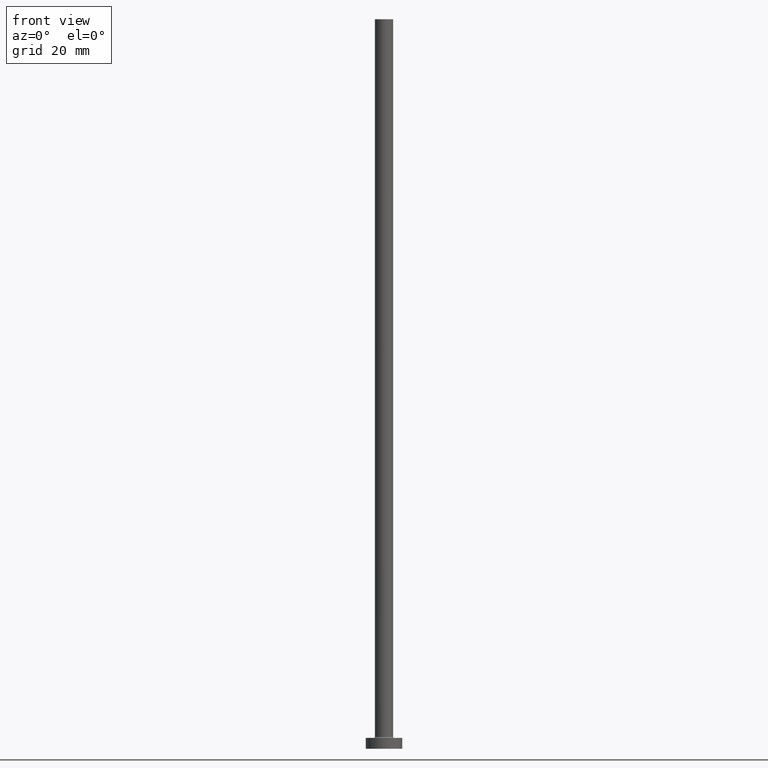
[diagram: clean part render]
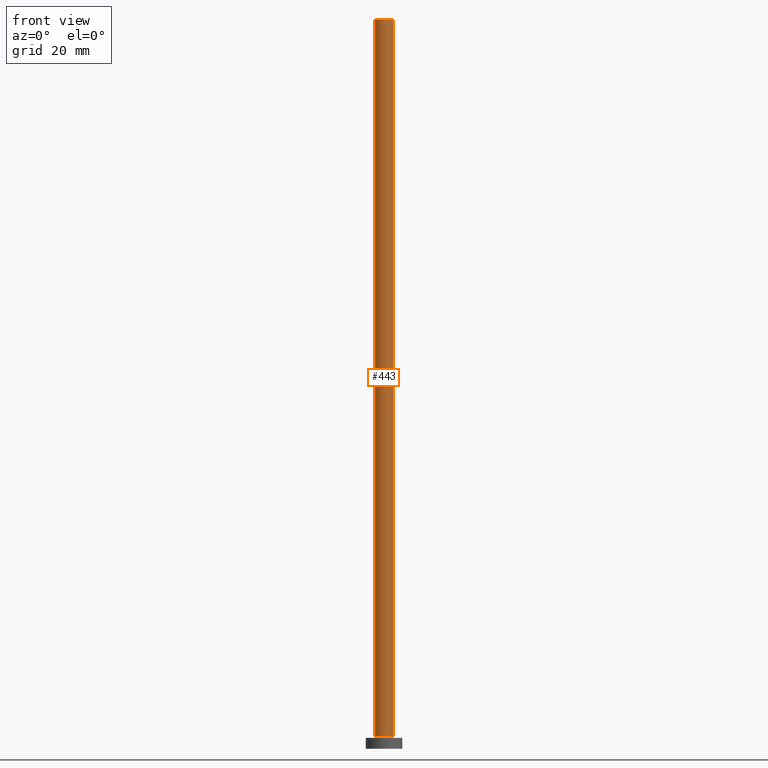
[diagram: same view with one face highlighted and labeled with its STEP entity id]
A machine part, front view. The second image highlights one B-rep face of the part: STEP entity #443.
In plain terms, the highlighted cylindrical surface (edge-blend (fillet) strip) has radius 2.5 mm, axis along (-0, -0, -1).
Its self-contained STEP definition (entity closure, byte-faithful):
#1 = AXIS2_PLACEMENT_3D ( 'NONE', #430, #114, #4 ) ;
#4 = DIRECTION ( 'NONE',  ( -1.000000000000000000, 0.000000000000000000, 0.000000000000000000 ) ) ;
#11 = FACE_OUTER_BOUND ( 'NONE', #173, .T. ) ;
#24 = EDGE_CURVE ( 'NONE', #244, #284, #223, .T. ) ;
#32 = VECTOR ( 'NONE', #241, 1000.000000000000000 ) ;
#33 = CARTESIAN_POINT ( 'NONE',  ( -2.500000000000000000, 0.000000000000000000, 3.299999999999997158 ) ) ;
#48 = VERTEX_POINT ( 'NONE', #81 ) ;
#52 = ORIENTED_EDGE ( 'NONE', *, *, #24, .F. ) ;
#63 = LINE ( 'NONE', #193, #32 ) ;
#81 = CARTESIAN_POINT ( 'NONE',  ( 2.500000000000000000, 3.061616997868383141E-16, 3.299999999999997158 ) ) ;
#88 = CARTESIAN_POINT ( 'NONE',  ( -2.500000000000000000, 0.000000000000000000, 200.0000000000000000 ) ) ;
#90 = VERTEX_POINT ( 'NONE', #33 ) ;
#96 = EDGE_CURVE ( 'NONE', #244, #90, #397, .T. ) ;
#101 = DIRECTION ( 'NONE',  ( 1.000000000000000000, 0.000000000000000000, 0.000000000000000000 ) ) ;
#114 = DIRECTION ( 'NONE',  ( -0.000000000000000000, -0.000000000000000000, -1.000000000000000000 ) ) ;
#145 = AXIS2_PLACEMENT_3D ( 'NONE', #455, #378, #101 ) ;
#149 = DIRECTION ( 'NONE',  ( 1.000000000000000000, 0.000000000000000000, 0.000000000000000000 ) ) ;
#151 = ORIENTED_EDGE ( 'NONE', *, *, #96, .T. ) ;
#173 = EDGE_LOOP ( 'NONE', ( #302, #52, #151, #349 ) ) ;
#193 = CARTESIAN_POINT ( 'NONE',  ( 2.500000000000000000, 3.061616997868383141E-16, 200.0000000000000000 ) ) ;
#198 = CARTESIAN_POINT ( 'NONE',  ( 2.500000000000000000, 3.061616997868383141E-16, 200.0000000000000000 ) ) ;
#211 = CARTESIAN_POINT ( 'NONE',  ( -2.500000000000000000, 0.000000000000000000, 200.0000000000000000 ) ) ;
#219 = EDGE_CURVE ( 'NONE', #90, #48, #293, .T. ) ;
#223 = CIRCLE ( 'NONE', #460, 2.500000000000000000 ) ;
#240 = VECTOR ( 'NONE', #361, 1000.000000000000000 ) ;
#241 = DIRECTION ( 'NONE',  ( -0.000000000000000000, -0.000000000000000000, -1.000000000000000000 ) ) ;
#244 = VERTEX_POINT ( 'NONE', #211 ) ;
#245 = EDGE_CURVE ( 'NONE', #284, #48, #63, .T. ) ;
#255 = CARTESIAN_POINT ( 'NONE',  ( 0.000000000000000000, 0.000000000000000000, 200.0000000000000000 ) ) ;
#284 = VERTEX_POINT ( 'NONE', #198 ) ;
#290 = CYLINDRICAL_SURFACE ( 'NONE', #1, 2.500000000000000000 ) ;
#293 = CIRCLE ( 'NONE', #145, 2.500000000000000000 ) ;
#302 = ORIENTED_EDGE ( 'NONE', *, *, #245, .F. ) ;
#349 = ORIENTED_EDGE ( 'NONE', *, *, #219, .T. ) ;
#361 = DIRECTION ( 'NONE',  ( -0.000000000000000000, -0.000000000000000000, -1.000000000000000000 ) ) ;
#378 = DIRECTION ( 'NONE',  ( 0.000000000000000000, 0.000000000000000000, 1.000000000000000000 ) ) ;
#388 = DIRECTION ( 'NONE',  ( 0.000000000000000000, 0.000000000000000000, 1.000000000000000000 ) ) ;
#397 = LINE ( 'NONE', #88, #240 ) ;
#430 = CARTESIAN_POINT ( 'NONE',  ( 0.000000000000000000, 0.000000000000000000, 200.0000000000000000 ) ) ;
#443 = ADVANCED_FACE ( 'NONE', ( #11 ), #290, .T. ) ;
#455 = CARTESIAN_POINT ( 'NONE',  ( 0.000000000000000000, 0.000000000000000000, 3.299999999999997158 ) ) ;
#460 = AXIS2_PLACEMENT_3D ( 'NONE', #255, #388, #149 ) ;